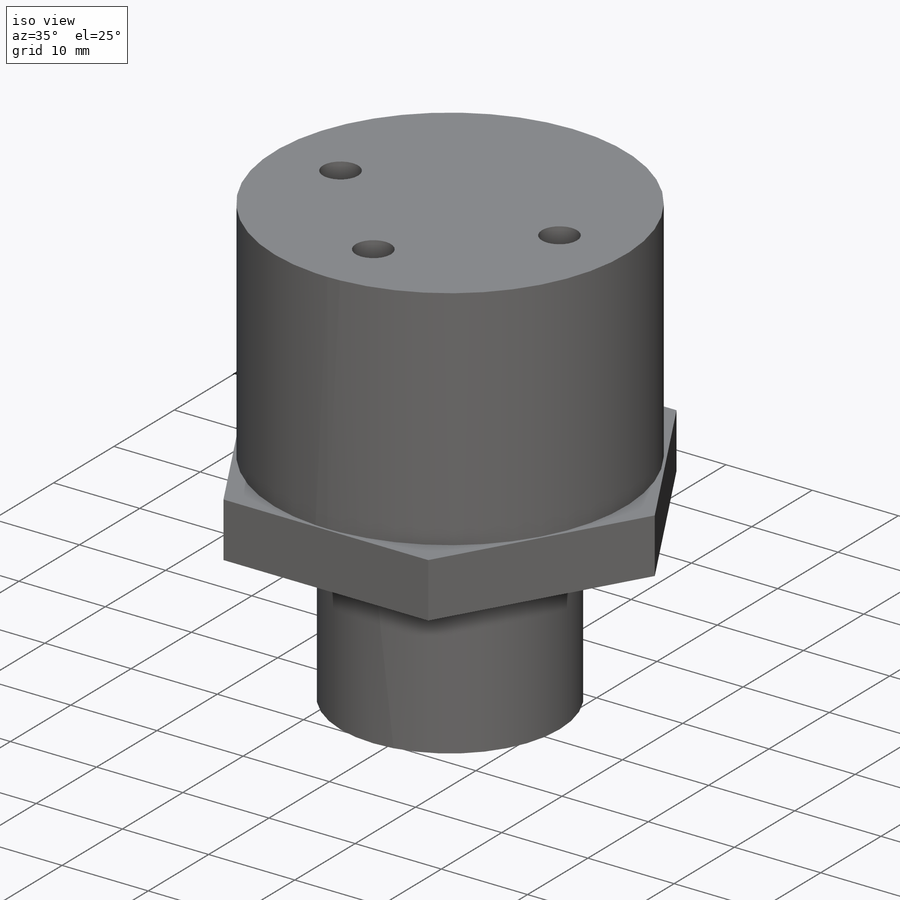
[diagram: iso view]
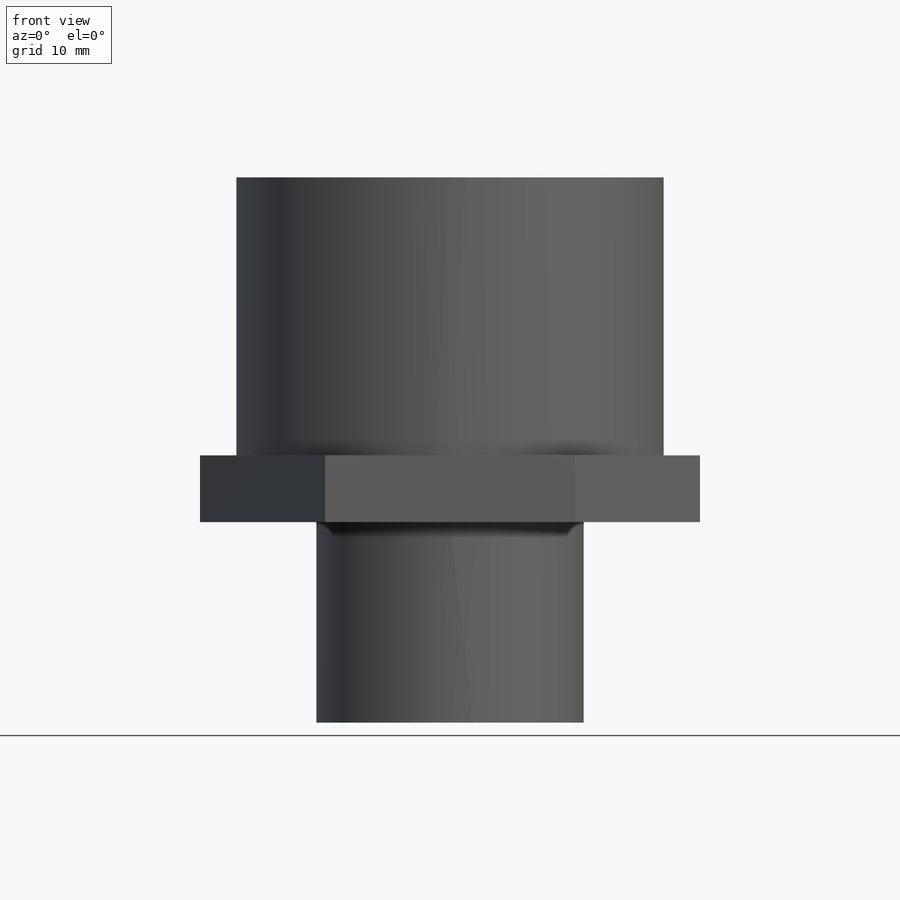
[diagram: front view]
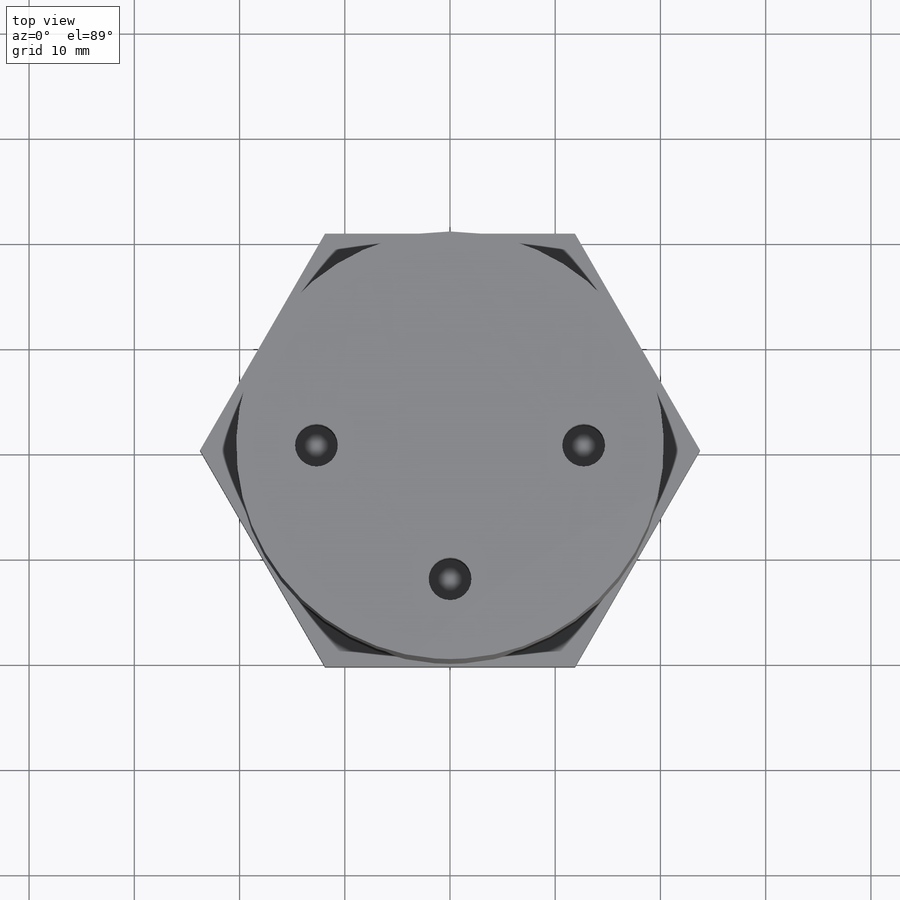
[diagram: top view]
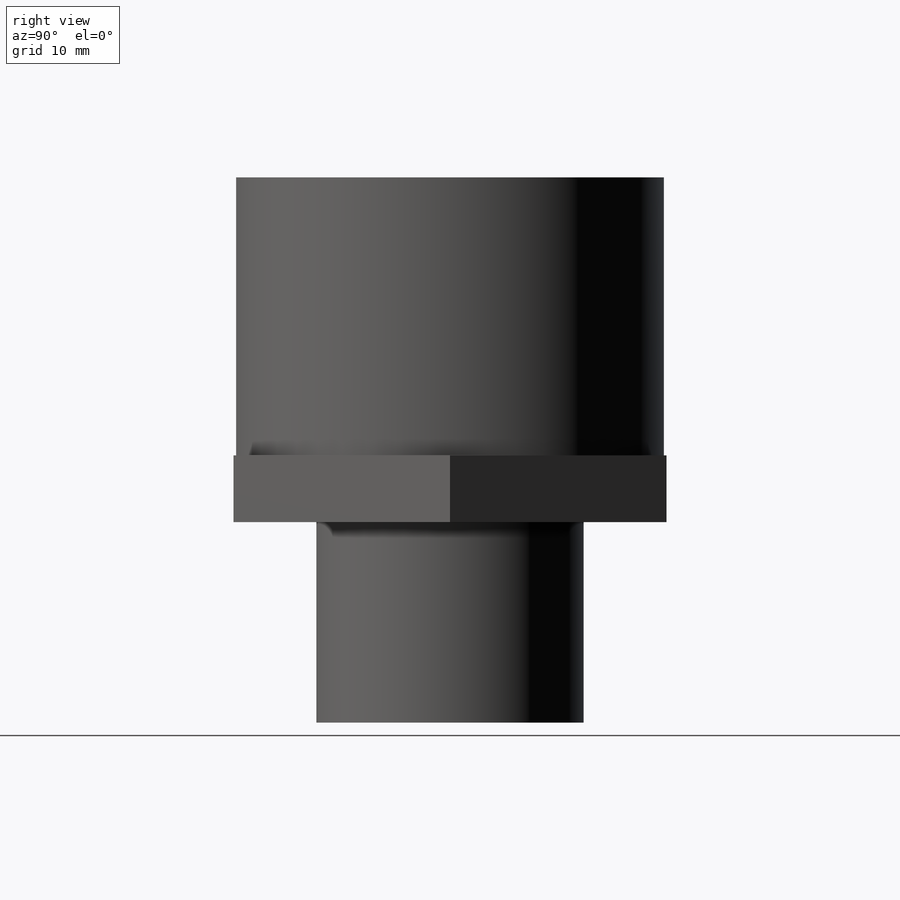
[diagram: right view]
SOLIDWORKS PART (.sldprt)
format: sldprt  version: not decoded by parser v0  size: 191,488 bytes
history: native  units: mm
features: sketch x4, extrude x3, material x1, thread x1, cut_extrude x1 (+11 scaffold rows collapsed)
feature tree (21):
  scaffold x11  (default folders/planes/origin — collapsed)
  material  "Material <not specified>"
  sketch  "Sketch1"  dims[D1=40.64mm]
  extrude  "Boss-Extrude1"  Depth=26.416mm
  sketch  "Sketch2"  dims[c1.D1=41.148mm c2.D1=~4.272423mm c3.D1=~130.420603deg c3.D2=36.6522mm c3.D3=31.75mm c3.D4=~36.246843mm c4.D2=~17.486313mm c5.D2=~17.801421deg c6.D2=31.75mm c6.D4=31.75mm c6.D5=~20.308994mm c7.D2=43.18mm c7.D1=41.148mm c8.D2=~23.043543mm c9.D2=120.0deg]
  extrude  "Boss-Extrude2"  Depth=6.35mm
  sketch  "Sketch3"  dims[D1=25.4mm]
  extrude  "Boss-Extrude3"  [1 undecoded]
  thread  "Cosmetic Thread1"  Diameter=23.19528mm  [1 undecoded]
  sketch  "Sketch4"  dims[D1=4.064mm D2=25.4mm]
  cut_extrude  "Cut-Extrude1"  Depth=10.16mm
decode coverage: 8 of 9 modeling features carry decoded parameters
note: ~ marks probable driven/reference dimensions
note: 2 parameter values undecoded
note: suppression state not decoded; provenance and decode notes live in map.json
